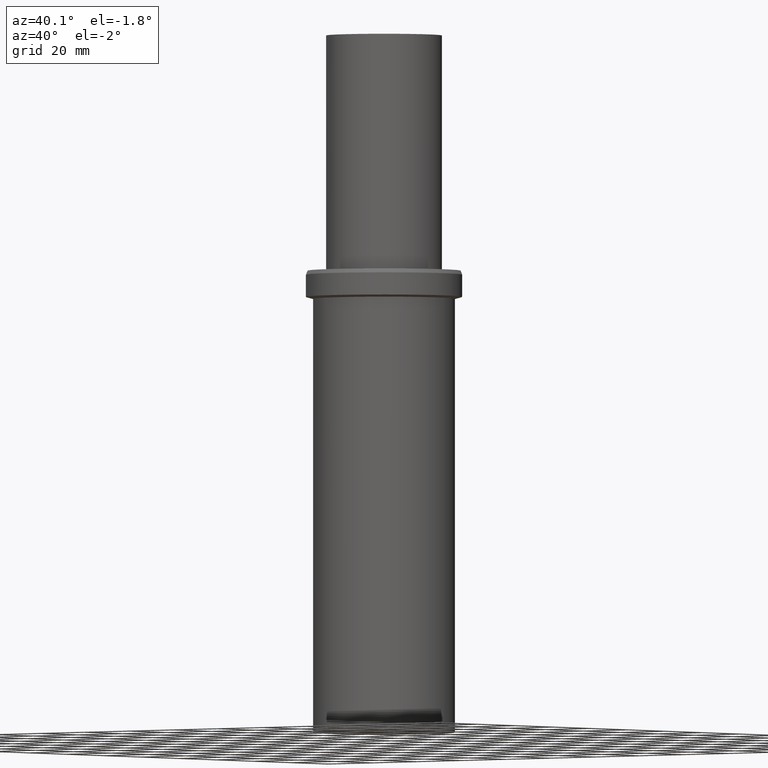
[diagram: clean part render]
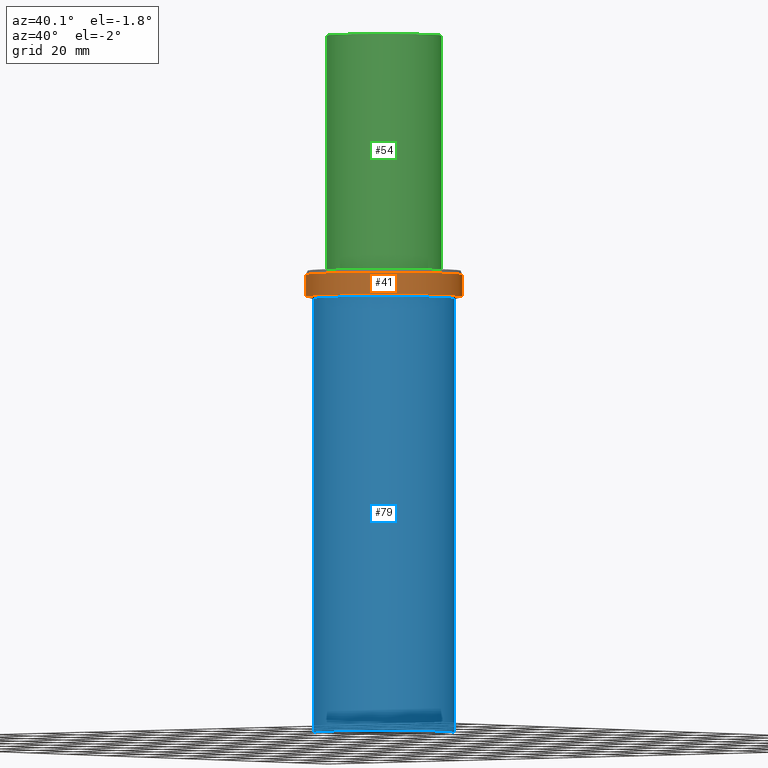
[diagram: same view with three faces highlighted in distinct colors, each labeled with its STEP entity id]
A machine part, auxiliary view with three faces highlighted in distinct colors.
Their STEP definitions:

[orange] entity #41 — the highlighted cylindrical surface (bore or boss wall) has radius 27 mm, axis along (-0, -0, 1).
#41=ADVANCED_FACE('240[2]',(#98,#99),#100,.T.);
#51=EDGE_CURVE('240[2]',#115,#115,#116,.T.);
#62=EDGE_CURVE('240[2]',#132,#132,#133,.T.);
#98=FACE_BOUND('',#167,.T.);
#99=FACE_BOUND('',#168,.T.);
#100=CYLINDRICAL_SURFACE('',#169,26.9999999999677);
#115=VERTEX_POINT('',#188);
#116=CIRCLE('',#189,26.9999999999677);
#132=VERTEX_POINT('',#209);
#133=CIRCLE('',#210,26.9999999999677);
#167=EDGE_LOOP('',(#243));
#168=EDGE_LOOP('',(#244));
#169=AXIS2_PLACEMENT_3D('',#245,#246,#247);
#188=CARTESIAN_POINT('',(-9.18485099360473E-015,26.9999999999677,149.999999999993));
#189=AXIS2_PLACEMENT_3D('',#263,#264,#265);
#209=CARTESIAN_POINT('',(-9.65182481753507E-015,26.9999999999677,157.626261290276));
#210=AXIS2_PLACEMENT_3D('',#283,#284,#285);
#243=ORIENTED_EDGE('',*,*,#62,.T.);
#244=ORIENTED_EDGE('',*,*,#51,.F.);
#245=CARTESIAN_POINT('',(-9.4183379055699E-015,-1.88366758111398E-014,153.813130645135));
#246=DIRECTION('',(-6.12323399573677E-017,-1.22464679914735E-016,1.0));
#247=DIRECTION('',(-1.23259516440783E-032,1.0,1.22464679914735E-016));
#263=CARTESIAN_POINT('',(-9.18485099360473E-015,-1.83697019872095E-014,149.999999999993));
#264=DIRECTION('',(6.12323399573677E-017,1.22464679914735E-016,-1.0));
#265=DIRECTION('',(-1.23259516440783E-032,1.0,1.22464679914735E-016));
#283=CARTESIAN_POINT('',(-9.65182481753507E-015,-1.93036496350701E-014,157.626261290276));
#284=DIRECTION('',(6.12323399573677E-017,1.22464679914735E-016,-1.0));
#285=DIRECTION('',(-1.23259516440783E-032,1.0,1.22464679914735E-016));

[blue] entity #79 — the highlighted cylindrical surface (bore or boss wall) has radius 24.5 mm, axis along (0, 0, -1).
#66=EDGE_CURVE('240[2]',#138,#138,#139,.T.);
#71=EDGE_CURVE('240[2]',#144,#144,#145,.T.);
#79=ADVANCED_FACE('240[2]',(#155,#156),#157,.T.);
#138=VERTEX_POINT('',#217);
#139=CIRCLE('',#218,24.4999999999889);
#144=VERTEX_POINT('',#224);
#145=CIRCLE('',#225,24.4999999999968);
#155=FACE_BOUND('',#238,.T.);
#156=FACE_BOUND('',#239,.T.);
#157=CYLINDRICAL_SURFACE('',#240,24.4999999999928);
#217=CARTESIAN_POINT('',(0.0,24.4999999999889,0.0));
#218=AXIS2_PLACEMENT_3D('',#289,#290,#291);
#224=CARTESIAN_POINT('',(-9.14383310349959E-015,24.4999999999968,149.330127018923));
#225=AXIS2_PLACEMENT_3D('',#293,#294,#295);
#238=EDGE_LOOP('',(#305));
#239=EDGE_LOOP('',(#306));
#240=AXIS2_PLACEMENT_3D('',#307,#308,#309);
#289=CARTESIAN_POINT('',(0.0,3.5527136788005E-015,0.0));
#290=DIRECTION('',(6.12323399573676E-017,1.22464679914735E-016,-1.0));
#291=DIRECTION('',(-1.23259516440783E-032,1.0,1.22464679914735E-016));
#293=CARTESIAN_POINT('',(-5.59111942469909E-015,-2.00640230463994E-014,149.330127018923));
#294=DIRECTION('',(6.12323399573676E-017,1.22464679914735E-016,-1.0));
#295=DIRECTION('',(-1.45008721583713E-016,1.0,1.22464679914735E-016));
#305=ORIENTED_EDGE('',*,*,#71,.T.);
#306=ORIENTED_EDGE('',*,*,#66,.F.);
#307=CARTESIAN_POINT('',(-4.89192053958296E-015,-1.61617099250409E-014,149.330127018923));
#308=DIRECTION('',(2.29610636465513E-017,1.03329041759327E-016,-1.0));
#309=DIRECTION('',(-5.108277167375E-017,-1.0,-1.03329041759327E-016));

[green] entity #54 — the highlighted cylindrical surface (bore or boss wall) has radius 20 mm, axis along (-0, -0, 1).
#46=EDGE_CURVE('240[2]',#107,#107,#108,.T.);
#54=ADVANCED_FACE('240[2]',(#119,#120),#121,.T.);
#73=EDGE_CURVE('240[2]',#147,#147,#148,.T.);
#107=VERTEX_POINT('',#178);
#108=CIRCLE('',#179,19.999999999975);
#119=FACE_BOUND('',#193,.T.);
#120=FACE_BOUND('',#194,.T.);
#121=CYLINDRICAL_SURFACE('',#195,19.999999999975);
#147=VERTEX_POINT('',#228);
#148=CIRCLE('',#229,19.999999999975);
#178=CARTESIAN_POINT('',(-1.46957615897684E-014,19.999999999975,240.000000000003));
#179=AXIS2_PLACEMENT_3D('',#254,#255,#256);
#193=EDGE_LOOP('',(#267));
#194=EDGE_LOOP('',(#268));
#195=AXIS2_PLACEMENT_3D('',#269,#270,#271);
#228=CARTESIAN_POINT('',(-1.0287033112838E-014,19.999999999975,159.000000000006));
#229=AXIS2_PLACEMENT_3D('',#296,#297,#298);
#254=CARTESIAN_POINT('',(-1.46957615897684E-014,-2.93915231795368E-014,240.000000000003));
#255=DIRECTION('',(6.12323399573677E-017,1.22464679914735E-016,-1.0));
#256=DIRECTION('',(-1.23259516440783E-032,1.0,1.22464679914735E-016));
#267=ORIENTED_EDGE('',*,*,#46,.T.);
#268=ORIENTED_EDGE('',*,*,#73,.F.);
#269=CARTESIAN_POINT('',(-1.24913973513032E-014,-2.49827947026064E-014,204.000000000003));
#270=DIRECTION('',(-6.12323399573677E-017,-1.22464679914735E-016,1.0));
#271=DIRECTION('',(-1.23259516440783E-032,1.0,1.22464679914735E-016));
#296=CARTESIAN_POINT('',(-1.0287033112838E-014,-2.0574066225676E-014,159.000000000006));
#297=DIRECTION('',(6.12323399573677E-017,1.22464679914735E-016,-1.0));
#298=DIRECTION('',(-1.23259516440783E-032,1.0,1.22464679914735E-016));